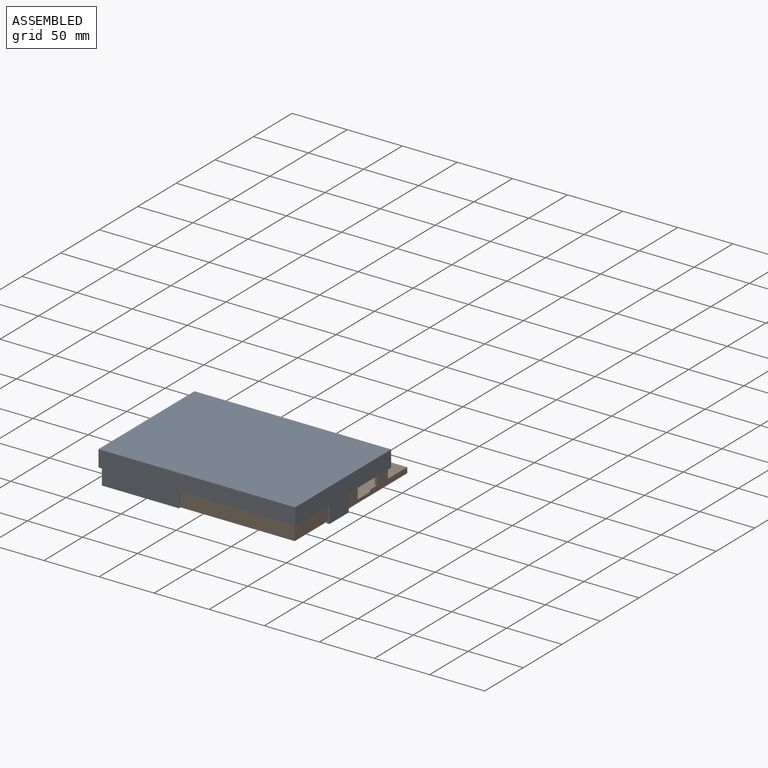
[diagram: assembled view]
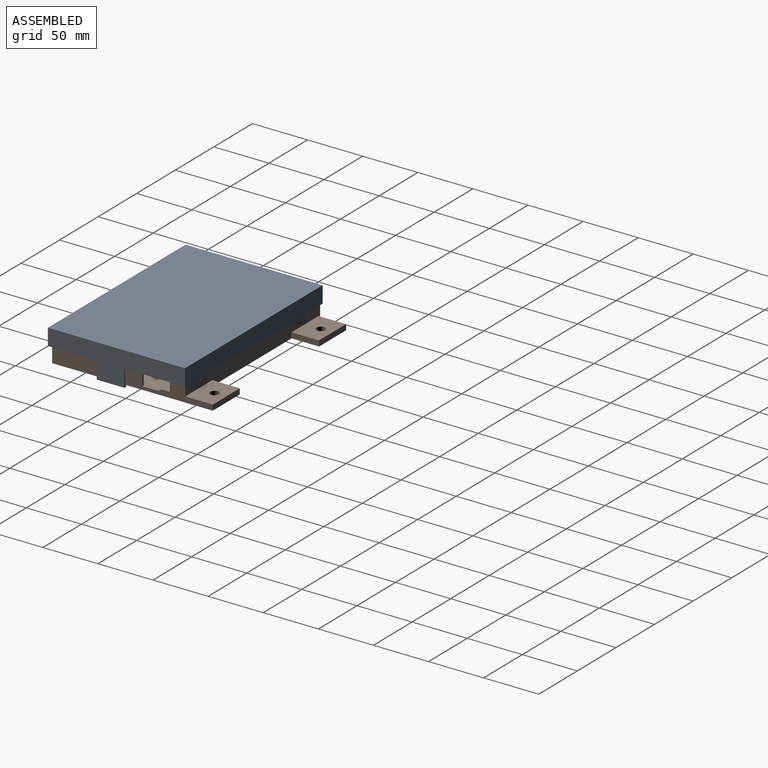
[diagram: assembled view, second angle]
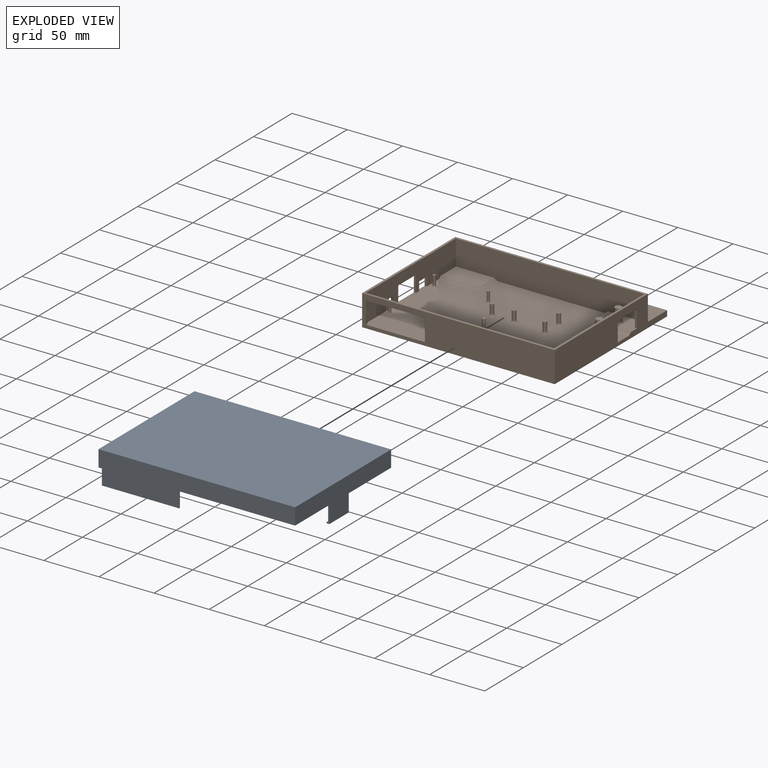
[diagram: exploded view]
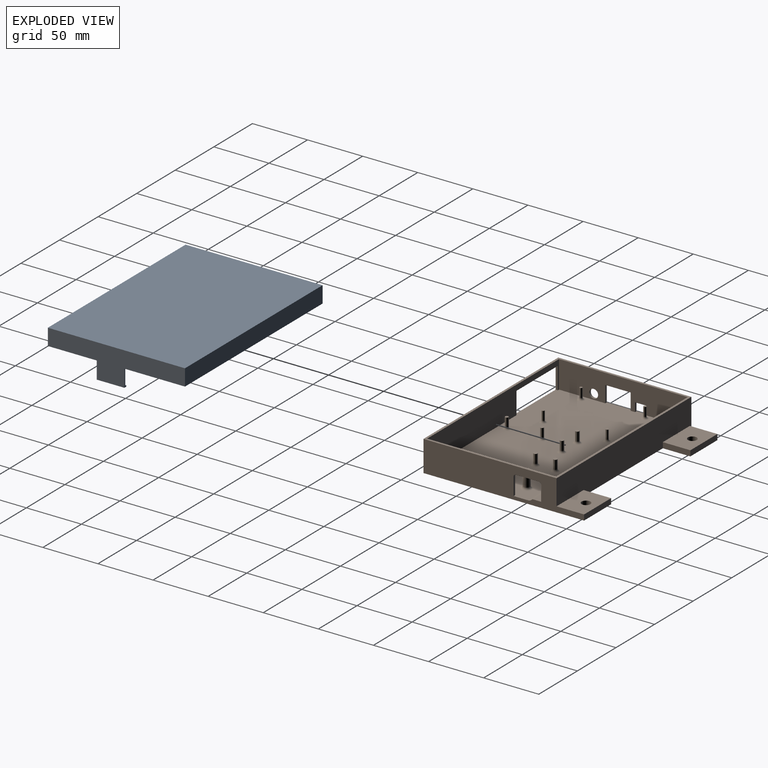
[diagram: exploded view, second angle]
ASSEMBLY  parts=2 mates=2
PART A: 26 faces, bbox 178.4x124.4x30.7 mm
  f0: plane 105.4x44.4mm, normal (0,0,1), area 178.3mm2, adj f5,f6,f10,f11,f21,f23
  f1: plane 24.4x3mm, normal (0,0,1), area 31.4mm2, adj f3,f6,f8,f11,f16,f24
  f2: plane 178.4x55mm, normal (0,0,1), area 343.2mm2, adj f3,f4,f5,f8,f9,f10,f17,f22
  f3: plane 124.4x30.7mm, normal (-1,0,0), area 2572.5mm2, adj f1,f2,f4,f6,f7,f15,f16,f17
  f4: plane 178.4x15mm, normal (0,-1,0), area 2676mm2, adj f2,f3,f5,f7
  f5: plane 124.4x30.7mm, normal (1,0,0), area 2258.5mm2, adj f0,f2,f4,f6,f7,f18,f21,f22
  f6: plane 178.4x29mm, normal (0,1,0), area 3656mm2, adj f0,f1,f3,f5,f7,f23,f24,f25
  f7: plane 178.4x124.4mm, normal (0,0,-1), area 22193mm2, adj f3,f4,f5,f6
  f8: plane 122x28.3mm, normal (1,0,0), area 2336.1mm2, adj f1,f2,f9,f11,f12,f13,f16,f17
  f9: plane 176x13.8mm, normal (0,1,0), area 2428.8mm2, adj f2,f8,f10,f12
  f10: plane 122x28.3mm, normal (-1,0,0), area 2046.1mm2, adj f0,f2,f9,f11,f12,f20,f21,f22
  f11: plane 176x27.8mm, normal (0,-1,0), area 3408.8mm2, adj f0,f1,f8,f10,f12,f23,f24,f25
  f12: plane 176x122mm, normal (0,0,1), area 21472mm2, adj f8,f9,f10,f11
  f13: plane 45x1.3mm, normal (0,0,-1), area 58.5mm2, adj f8,f14,f16,f17
  f14: plane 45x1.2mm, normal (1,0,0), area 54mm2, adj f13,f15,f16,f17
  f15: plane 45x2.5mm, normal (0,0,1), area 112.5mm2, adj f3,f14,f16,f17
  f16: plane 15.7x2.5mm, normal (0,1,0), area 20.4mm2, adj f1,f3,f8,f13,f14,f15
  f17: plane 15.7x2.5mm, normal (0,-1,0), area 20.4mm2, adj f2,f3,f8,f13,f14,f15
  f18: plane 25x2.5mm, normal (0,0,1), area 62.5mm2, adj f5,f19,f21,f22
  f19: plane 25x1.2mm, normal (-1,0,0), area 30mm2, adj f18,f20,f21,f22
  f20: plane 25x1.3mm, normal (0,0,-1), area 32.5mm2, adj f10,f19,f21,f22
  f21: plane 15.7x2.5mm, normal (0,1,0), area 20.4mm2, adj f0,f5,f10,f18,f19,f20
  f22: plane 15.7x2.5mm, normal (0,-1,0), area 20.4mm2, adj f2,f5,f10,f18,f19,f20
  f23: plane 14x1.2mm, normal (1,0,0), area 16.8mm2, adj f0,f6,f11,f25
  f24: plane 14x1.2mm, normal (-1,0,0), area 16.8mm2, adj f1,f6,f11,f25
  f25: plane 70x1.2mm, normal (0,0,1), area 84mm2, adj f6,f11,f23,f24
PART B: 77 faces, bbox 174.8x145.8x28 mm
  f0: plane 116.75x25mm, normal (1,0,0), area 2401.1mm2, adj f1,f2,f28,f31,f32,f33,f34,f35
  f1: plane 174.75x118.75mm, normal (0,0,1), area 17845.1mm2, adj f0,f2,f4,f6,f29,f30,f31,f32
  f2: plane 170.75x25mm, normal (0,-1,0), area 4127.9mm2, adj f0,f1,f4,f28,f46,f58,f60,f61
  f3: plane 174.75x28mm, normal (0,1,0), area 4543mm2, adj f6,f27,f28,f29,f49,f50,f53,f56
  f4: plane 116.75x25mm, normal (-1,0,0), area 2446.5mm2, adj f1,f2,f5,f28,f31,f42,f43,f46
  f5: plane 14x2mm, normal (0,-1,0), area 28mm2, adj f4,f6,f46,f63
  f6: plane 145.75x28mm, normal (1,0,0), area 3076.1mm2, adj f1,f3,f5,f27,f28,f30,f42,f43
  f7: cylinder r=1.25mm len=8mm, axis (0,0,-1), area 62.8mm2, adj f8,f67
  f8: plane 2.5x2.5mm, normal (0,0,1), area 4.9mm2, adj f7
  f9: cylinder r=1.25mm len=8mm, axis (0,0,-1), area 62.8mm2, adj f10,f68
  f10: plane 2.5x2.5mm, normal (0,0,1), area 4.9mm2, adj f9
  f11: cylinder r=1.25mm len=8mm, axis (0,0,-1), area 62.8mm2, adj f12,f69
  f12: plane 2.5x2.5mm, normal (0,0,1), area 4.9mm2, adj f11
  f13: cylinder r=1.25mm len=8mm, axis (0,0,-1), area 62.8mm2, adj f14,f70
  f14: plane 2.5x2.5mm, normal (0,0,1), area 4.9mm2, adj f13
  f15: cylinder r=1.5mm len=8mm, axis (0,0,-1), area 75.4mm2, adj f16,f71
  f16: plane 3x3mm, normal (0,0,1), area 7.1mm2, adj f15
  f17: cylinder r=1.5mm len=8mm, axis (0,0,-1), area 75.4mm2, adj f18,f72
  f18: plane 3x3mm, normal (0,0,1), area 7.1mm2, adj f17
  f19: cylinder r=1.75mm len=8mm, axis (0,0,-1), area 88mm2, adj f20,f73
  f20: plane 3.5x3.5mm, normal (0,0,1), area 9.6mm2, adj f19
  f21: cylinder r=1.75mm len=8mm, axis (0,0,-1), area 88mm2, adj f22,f74
  f22: plane 3.5x3.5mm, normal (0,0,1), area 9.6mm2, adj f21
  f23: cylinder r=1.75mm len=8mm, axis (0,0,-1), area 88mm2, adj f24,f75
  f24: plane 3.5x3.5mm, normal (0,0,1), area 9.6mm2, adj f23
  f25: cylinder r=1.75mm len=8mm, axis (0,0,-1), area 88mm2, adj f26,f76
  f26: plane 3.5x3.5mm, normal (0,0,1), area 9.6mm2, adj f25
  f27: plane 174.75x145.75mm, normal (0,0,-1), area 22750.5mm2, adj f3,f6,f29,f30,f50,f51,f52,f54
  f28: plane 174.75x120.75mm, normal (0,0,1), area 1166mm2, adj f0,f2,f3,f4,f6,f29,f30,f31
  f29: plane 120.75x28mm, normal (-1,0,0), area 2905.7mm2, adj f1,f3,f27,f28,f30,f32,f33,f34
  f30: plane 174.75x28mm, normal (0,-1,0), area 3823mm2, adj f1,f6,f27,f28,f29,f39,f40,f41
  f31: plane 170.75x25mm, normal (0,1,0), area 3198.8mm2, adj f0,f1,f4,f28,f39,f40,f41
  f32: plane 8x2mm, normal (0,-1,0), area 16mm2, adj f0,f1,f29,f34
  f33: plane 8x2mm, normal (0,1,0), area 16mm2, adj f0,f1,f29,f34
  f34: plane 10x2mm, normal (0,0,-1), area 20mm2, adj f0,f29,f32,f33
  f35: plane 15x2mm, normal (0,-1,0), area 30mm2, adj f0,f1,f29,f37
  f36: plane 15x2mm, normal (0,1,0), area 30mm2, adj f0,f1,f29,f37
  f37: plane 23x2mm, normal (0,0,-1), area 46mm2, adj f0,f29,f35,f36
  f38: cylinder r=4mm len=8mm, axis (-1,0,0), area 50.3mm2, adj f0,f29
  f39: plane 20x2mm, normal (1,0,0), area 40mm2, adj f1,f30,f31,f41
  f40: plane 20x2mm, normal (-1,0,0), area 40mm2, adj f1,f30,f31,f41
  f41: plane 53.5x2mm, normal (0,0,-1), area 107mm2, adj f30,f31,f39,f40
  f42: plane 21x2mm, normal (0,0,-1), area 42mm2, adj f4,f6,f63,f64
  f43: plane 16x2mm, normal (0,1,0), area 32mm2, adj f1,f4,f6,f64
  f44: cylinder r=3mm len=13mm, axis (0,0,-1), area 245mm2, adj f45,f66
  f45: plane 6x6mm, normal (0,0,1), area 28.3mm2, adj f44
  f46: plane 35x20mm, normal (0,0,1), area 597.5mm2, adj f2,f4,f5,f6,f61,f62,f65
  f47: plane 6x6mm, normal (0,0,1), area 28.3mm2, adj f48
  f48: cylinder r=3mm len=11mm, axis (0,0,-1), area 207.3mm2, adj f47,f65
  f49: plane 35x25mm, normal (0,0,1), area 824.7mm2, adj f3,f6,f50,f51,f52
  f50: plane 25x5mm, normal (-1,0,0), area 125mm2, adj f3,f27,f49,f51
  f51: plane 35x5mm, normal (0,1,0), area 175mm2, adj f6,f27,f49,f50
  f52: cylinder r=4mm len=8mm, axis (0,0,-1), area 125.7mm2, adj f27,f49
  f53: plane 35x25mm, normal (0,0,1), area 824.7mm2, adj f3,f54,f55,f56,f57
  f54: cylinder r=4mm len=8mm, axis (0,0,-1), area 125.7mm2, adj f27,f53
  f55: plane 35x5mm, normal (0,1,0), area 175mm2, adj f27,f53,f56,f57
  f56: plane 25x5mm, normal (-1,0,0), area 125mm2, adj f3,f27,f53,f55
  f57: plane 25x5mm, normal (1,0,0), area 125mm2, adj f3,f27,f53,f55
  f58: plane 35x20mm, normal (0,0,1), area 700mm2, adj f0,f2,f59,f60
  f59: cylinder r=5mm len=39mm, axis (1,0,0), area 170.8mm2, adj f0,f1,f58,f60
  f60: cylinder r=5mm len=24mm, axis (0,-1,0), area 101.3mm2, adj f1,f2,f58,f59
  f61: cylinder r=5mm len=24mm, axis (0,1,0), area 101.3mm2, adj f1,f2,f46,f62
  f62: cylinder r=5mm len=39mm, axis (-1,0,0), area 170.8mm2, adj f1,f6,f46,f61
  f63: cylinder r=2mm len=2mm, axis (-1,0,0), area 6.3mm2, adj f4,f5,f6,f42
  f64: cylinder r=2mm len=2mm, axis (-1,0,0), area 6.3mm2, adj f4,f6,f42,f43
  f65: torus R=5mm, axis (0,0,-1), area 73.6mm2, adj f46,f48
  f66: torus R=5mm, axis (0,0,1), area 73.6mm2, adj f1,f44
  f67: torus R=3.25mm, axis (0,0,1), area 39mm2, adj f1,f7
  f68: torus R=3.25mm, axis (0,0,1), area 39mm2, adj f1,f9
  f69: torus R=3.25mm, axis (0,0,1), area 39mm2, adj f1,f11
  f70: torus R=3.25mm, axis (0,0,1), area 39mm2, adj f1,f13
  f71: torus R=3.5mm, axis (0,0,1), area 44mm2, adj f1,f15
  f72: torus R=3.5mm, axis (0,0,1), area 44mm2, adj f1,f17
  f73: torus R=3.75mm, axis (0,0,1), area 48.9mm2, adj f1,f19
  f74: torus R=3.75mm, axis (0,0,1), area 48.9mm2, adj f1,f21
  f75: torus R=3.75mm, axis (0,0,1), area 48.9mm2, adj f1,f23
  f76: torus R=3.75mm, axis (0,0,1), area 48.9mm2, adj f1,f25
PLACE A rot(axis=(1,0,0),180deg) t=(-36.93,97.94,43.46)mm
PLACE B t=(-33.36,-22.01,17.26)mm fixed
MATE planar A.f9 <-> B.f3  axis (0,-1,0) through (-35.73,96.74,28.46)mm
MATE planar A.f12 <-> B.f28  axis (0,0,-1) through (52.27,35.74,42.26)mm
